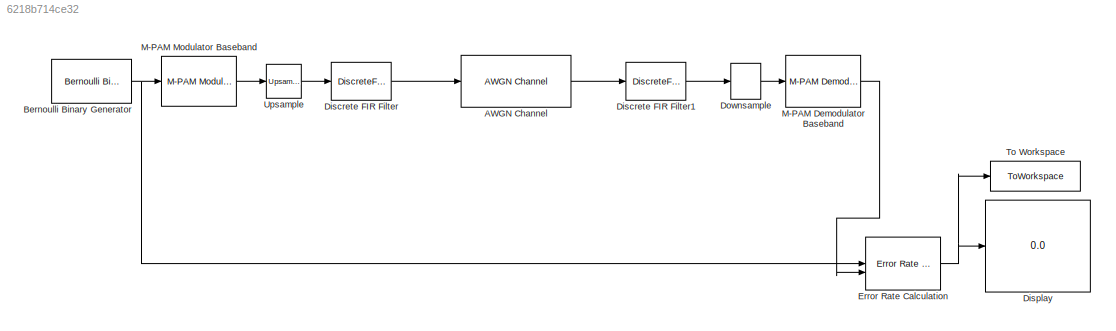
MODEL slx_6218b714ce32
KIND model
CONFIG AbsTol = auto
CONFIG EnableMultiTasking = off
CONFIG FixedStep = auto
CONFIG MaxStep = auto
CONFIG MinStep = auto
CONFIG RelTol = 1e-3
CONFIG SampleTimeConstraint = Unconstrained
CONFIG SolverName = VariableStepAuto
CONFIG StartTime = 0.0
CONFIG StopTime = inf
BLOCK [Reference] AWGN Channel  REF=commchan3/AWGN
Channel
  SourceBlock = commchan3/AWGN\nChannel
  SourceType = AWGN Channel
BLOCK [Reference] Bernoulli Binary Generator  REF=commrandsrc3/Bernoulli Binary
Generator
  SourceBlock = commrandsrc3/Bernoulli Binary\nGenerator
  SourceType = Bernoulli Binary Generator
BLOCK [DiscreteFir] Discrete FIR Filter
  CloseFcn = dspblkCoreblockFVToolHelper(gcbh,'close');
  Coefficients = ones(1,4)/sqrt(4)
  CopyFcn = dspblkCoreblockFVToolHelper(gcbh,'copy');
  DeleteFcn = dspblkCoreblockFVToolHelper(gcbh,'close');
  InputPortMap = u0
  InputProcessing = Columns as channels (frame based)
  LoadFcn = dspblkCoreblockFVToolHelper(gcbh,'load');
  ModelCloseFcn = dspblkCoreblockFVToolHelper(gcbh,'close');
  OutputPortMap = o0
  PostSaveFcn = dspblkCoreblockFVToolHelper(gcbh,'postsave');
  PreSaveFcn = dspblkCoreblockFVToolHelper(gcbh,'presave');
BLOCK [DiscreteFir] Discrete FIR Filter1
  CloseFcn = dspblkCoreblockFVToolHelper(gcbh,'close');
  Coefficients = ones(1,4)/sqrt(4)
  CopyFcn = dspblkCoreblockFVToolHelper(gcbh,'copy');
  DeleteFcn = dspblkCoreblockFVToolHelper(gcbh,'close');
  InputPortMap = u0
  InputProcessing = Columns as channels (frame based)
  LoadFcn = dspblkCoreblockFVToolHelper(gcbh,'load');
  ModelCloseFcn = dspblkCoreblockFVToolHelper(gcbh,'close');
  OutputPortMap = o0
  PostSaveFcn = dspblkCoreblockFVToolHelper(gcbh,'postsave');
  PreSaveFcn = dspblkCoreblockFVToolHelper(gcbh,'presave');
BLOCK [Display] Display
  Decimation = 1
  Format = long
BLOCK [DownSample] Downsample
  N = 4
  phase = 3
BLOCK [Reference] Error Rate Calculation  REF=commsink2/Error Rate
Calculation
  LibrarySourceBlock = commhdlsink/Error Rate\nCalculation
  SourceBlock = commsink2/Error Rate\nCalculation
  SourceType = Error Rate Calculation
BLOCK [Reference] M-PAM Demodulator Baseband  REF=commdigbbndam3/M-PAM
Demodulator
Baseband
  SourceBlock = commdigbbndam3/M-PAM\nDemodulator\nBaseband
  SourceType = M-PAM Demodulator Baseband
BLOCK [Reference] M-PAM Modulator Baseband  REF=commdigbbndam3/M-PAM
Modulator
Baseband
  SourceBlock = commdigbbndam3/M-PAM\nModulator\nBaseband
  SourceType = M-PAM Modulator Baseband
BLOCK [ToWorkspace] To Workspace
  FixptAsFi = on
  MaxDataPoints = 2
  SampleTime = -1
  Save2DSignal = 2-D array (concatenate along first dimension)
  VariableName = grayBER
BLOCK [Reference] Upsample  REF=dspsigops/Upsample
  LibrarySourceBlock = dsphdlsupportsigops/Upsample
  SourceBlock = dspsigops/Upsample
  SourceType = Upsample
  UserDataPersistent = on
LINE AWGN Channel:1 -> Discrete FIR Filter1:1
NET Bernoulli Binary Generator:1 -> Error Rate Calculation:1, M-PAM Modulator Baseband:1
LINE Discrete FIR Filter1:1 -> Downsample:1
LINE Discrete FIR Filter:1 -> AWGN Channel:1
LINE Downsample:1 -> M-PAM Demodulator Baseband:1
NET Error Rate Calculation:1 -> Display:1, To Workspace:1
LINE M-PAM Demodulator Baseband:1 -> Error Rate Calculation:2
LINE M-PAM Modulator Baseband:1 -> Upsample:1
LINE Upsample:1 -> Discrete FIR Filter:1
note: NET lines group one-source signal fan-out (src -> all destinations, sorted); 1:1 wires keep LINE
